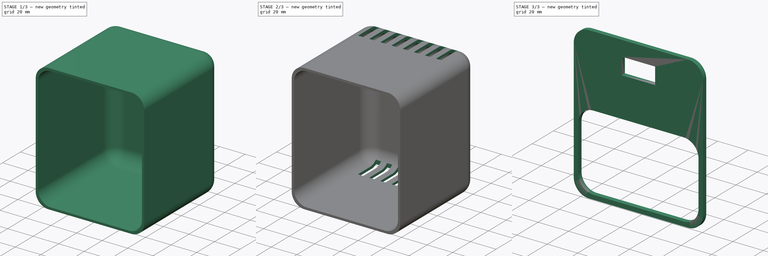
[diagram: build sequence overview — one tinted view per stage of 3, left to right]
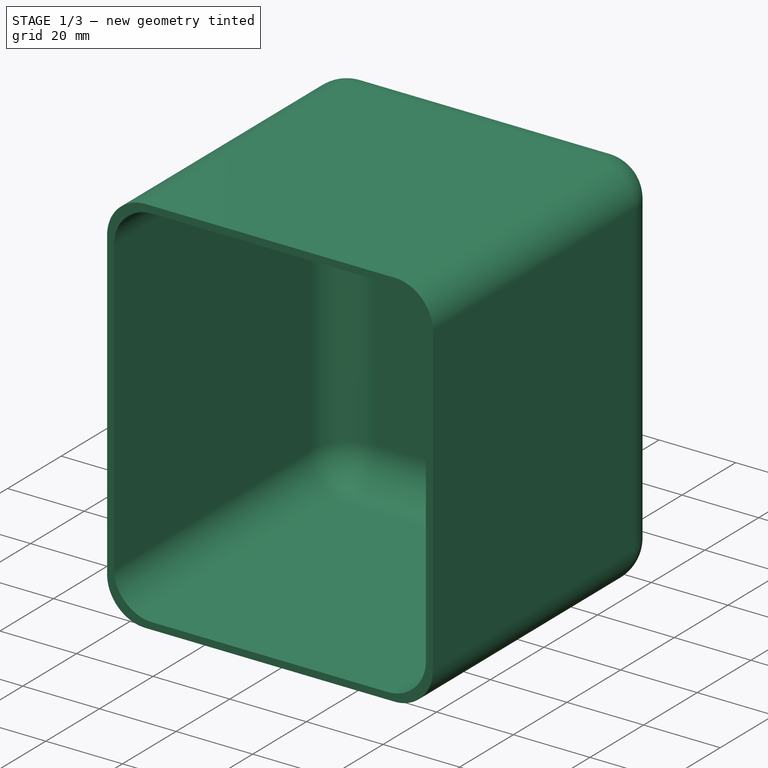
[diagram: stage 1 of 3 — iso view after this stage's code; geometry added in this stage tinted green]
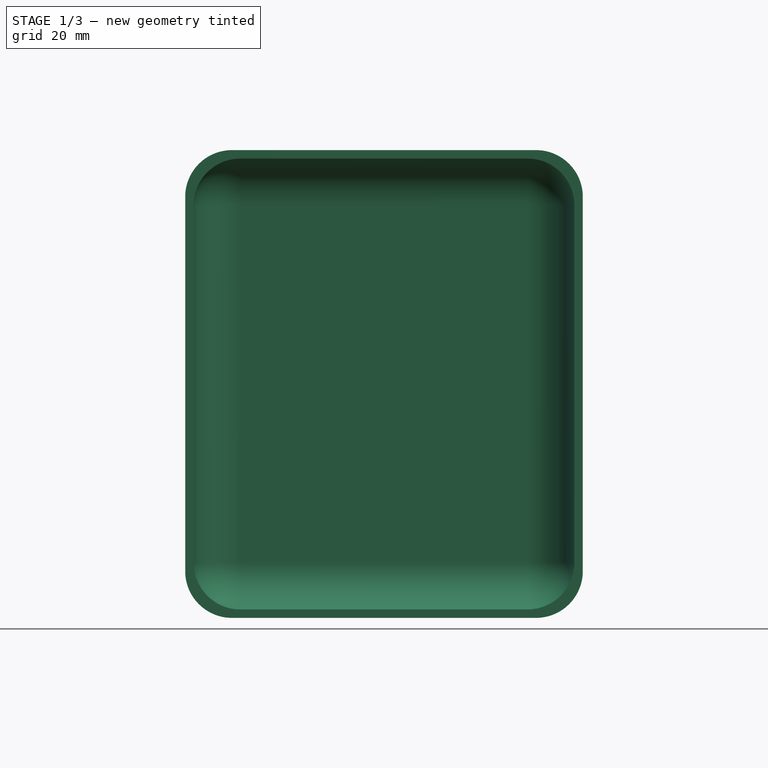
[diagram: stage 1 of 3 — front view after this stage's code; geometry added in this stage tinted green]
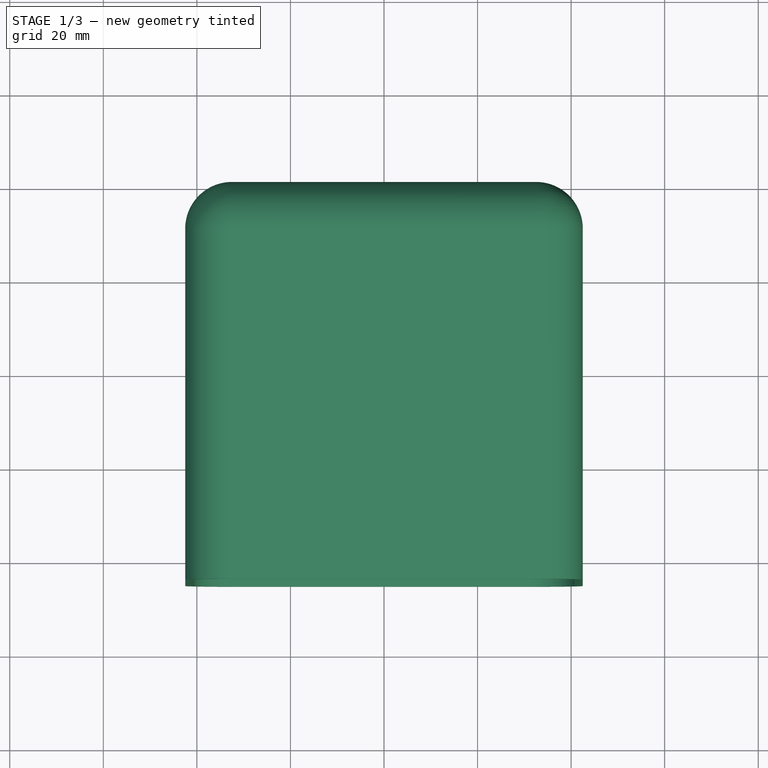
[diagram: stage 1 of 3 — top view after this stage's code; geometry added in this stage tinted green]
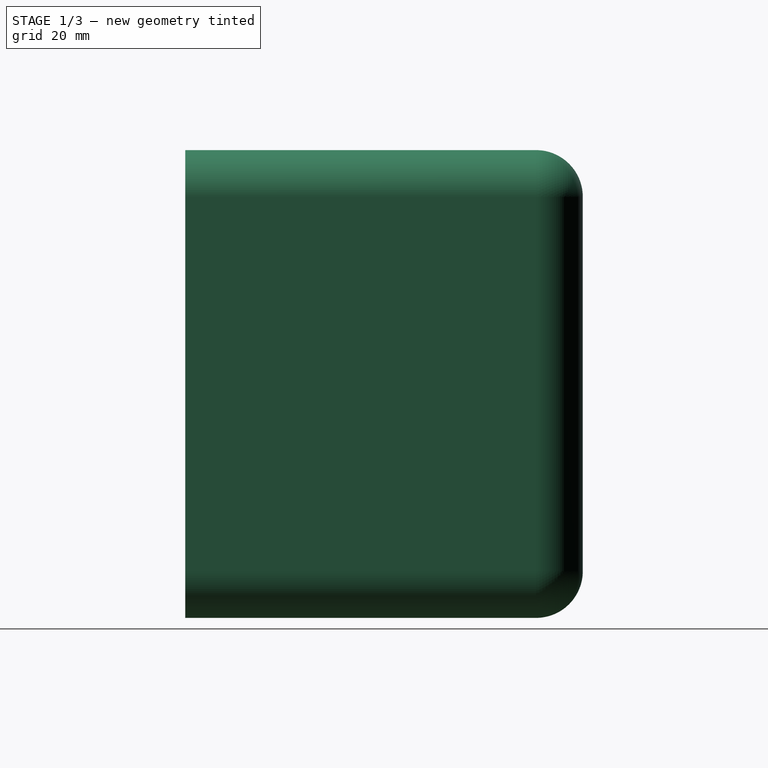
[diagram: stage 1 of 3 — right view after this stage's code; geometry added in this stage tinted green]
FCSTD DOCUMENT  (FreeCAD 0.21R33771 (Git))
Label: smart_speaker
License: All rights reserved
LicenseURL: http://en.wikipedia.org/wiki/All_rights_reserved
objects: Sketcher::SketchObject×7, PartDesign::Pocket×4, PartDesign::Body×3, PartDesign::Pad×2, PartDesign::ShapeBinder×2, PartDesign::Fillet×1, PartDesign::LinearPattern×1
note: 27 computed .brp shape members not serialized (recipe doc carries the construction recipe); baked Part::Feature solids carry a one-line shape summary decoded from their .brp

FEATURE [Sketcher::SketchObject] Sketch
  FullyConstrained = true
  MapMode = 5
  Placement = pos=(0,0,0) rot=(1,0,0;1.5708rad)
  Support = -> [XZ_Plane]
  sketch-geometry (5):
    g0: LineSegment StartX=-42.5 StartY=-50 StartZ=0 EndX=-42.5 EndY=50 EndZ=0
    g1: LineSegment StartX=-42.5 StartY=50 StartZ=0 EndX=42.5 EndY=50 EndZ=0
    g2: LineSegment StartX=42.5 StartY=50 StartZ=0 EndX=42.5 EndY=-50 EndZ=0
    g3: LineSegment StartX=42.5 StartY=-50 StartZ=0 EndX=-42.5 EndY=-50 EndZ=0
    g4: GeomPoint X=0 Y=0 Z=0
  constraints (12):
    c: Coincident(g0,g1)
    c: Coincident(g1,g2)
    c: Coincident(g2,g3)
    c: Coincident(g3,g0)
    c: Horizontal(g1)
    c: Horizontal(g3)
    c: Vertical(g0)
    c: Vertical(g2)
    c: Symmetric(g1,g0,g4)
    c: Coincident(g4,g-1)
    c: DistanceY(g0,g0) = 100
    c: DistanceX(g0,g1) = 85
FEATURE [PartDesign::Pad] Pad
  Direction = (0,-1,-2e-16)
  Length = 85
  Length2 = 10
  Placement = pos=(0,0,0) rot=(1,0,0;1.5708rad)
  Profile = -> Sketch
  ReferenceAxis = -> Sketch [N_Axis]
  Type = 0
FEATURE [Sketcher::SketchObject] Sketch001
  ExternalGeometry = -> [Pad]
  FullyConstrained = true
  MapMode = 5
  Placement = pos=(0,-85,-1.89e-14) rot=(1,0,0;1.5708rad)
  Support = -> [Pad]
  sketch-geometry (5):
    g0: LineSegment StartX=-40.7 StartY=48.2 StartZ=0 EndX=-40.7 EndY=-48.2 EndZ=0
    g1: LineSegment StartX=-40.7 StartY=-48.2 StartZ=0 EndX=40.7 EndY=-48.2 EndZ=0
    g2: LineSegment StartX=40.7 StartY=-48.2 StartZ=0 EndX=40.7 EndY=48.2 EndZ=0
    g3: LineSegment StartX=40.7 StartY=48.2 StartZ=0 EndX=-40.7 EndY=48.2 EndZ=0
    g4: GeomPoint X=0 Y=0 Z=0
  constraints (12):
    c: Coincident(g0,g1)
    c: Coincident(g1,g2)
    c: Coincident(g2,g3)
    c: Coincident(g3,g0)
    c: Horizontal(g1)
    c: Horizontal(g3)
    c: Vertical(g0)
    c: Vertical(g2)
    c: Symmetric(g1,g0,g4)
    c: Coincident(g4,g-1)
    c: DistanceY(g0,g-4) = 1.8
    c: DistanceX(g-4,g0) = 1.8
FEATURE [PartDesign::Pocket] Pocket
  BaseFeature = -> Pad
  Direction = (0,1,2e-16)
  Length = 83.2
  Length2 = 5
  Placement = pos=(0,0,0) rot=(1,0,0;1.5708rad)
  Profile = -> Sketch001
  ReferenceAxis = -> Sketch001 [N_Axis]
  Type = 0
FEATURE [PartDesign::Fillet] Fillet
  Base = -> Pocket [Edge5,Edge6,Edge8,Edge9,Edge2,Edge1,Edge18,Edge19,Edge23,Edge22,Edge20,Edge17,Edge11,Edge3,Edge21,Edge24]
  BaseFeature = -> Pocket
  Placement = pos=(0,0,0) rot=(1,0,0;1.5708rad)
  Radius = 10
  SupportTransform = false
  UseAllEdges = false
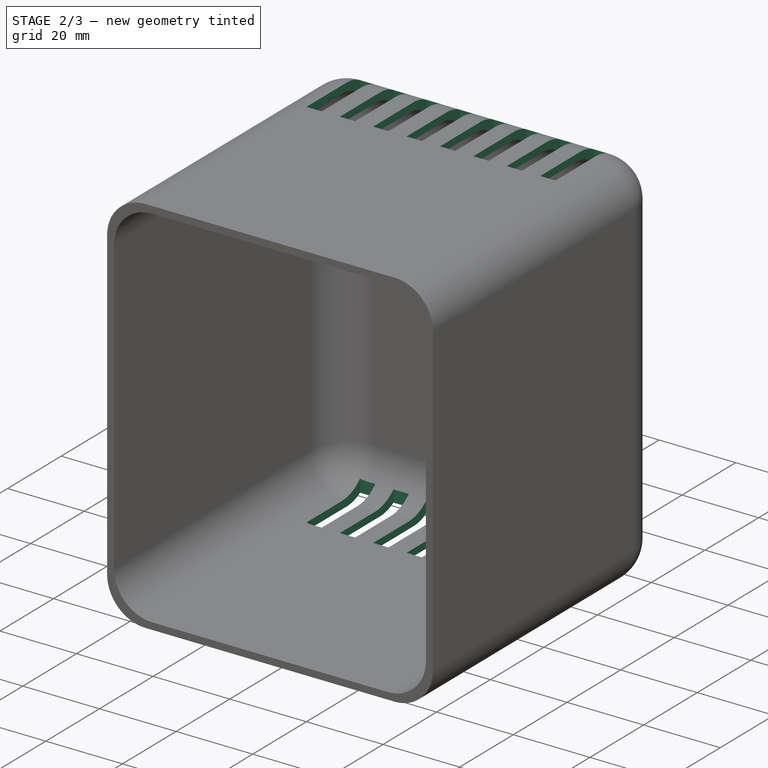
[diagram: stage 2 of 3 — iso view after this stage's code; geometry added in this stage tinted green]
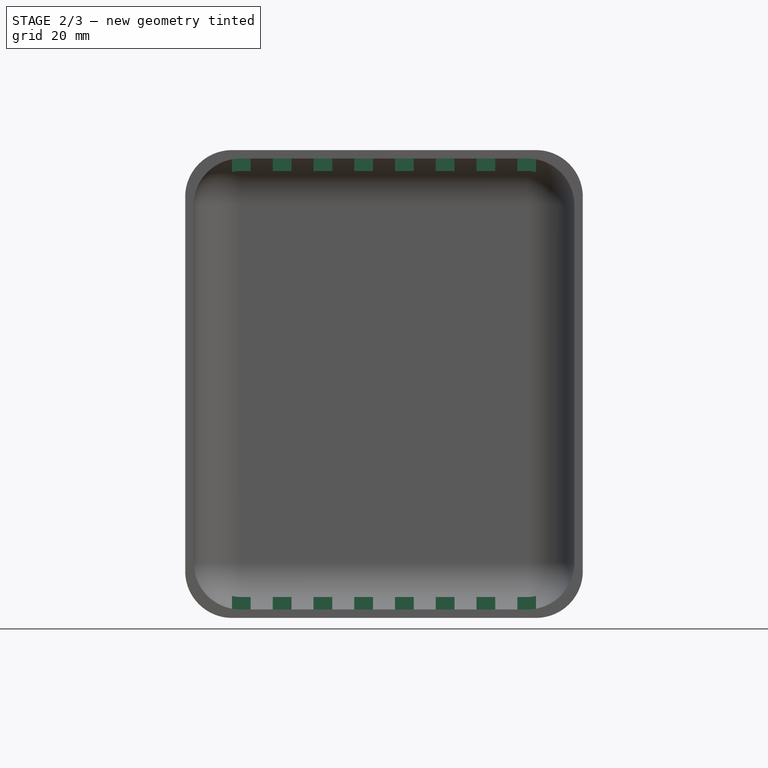
[diagram: stage 2 of 3 — front view after this stage's code; geometry added in this stage tinted green]
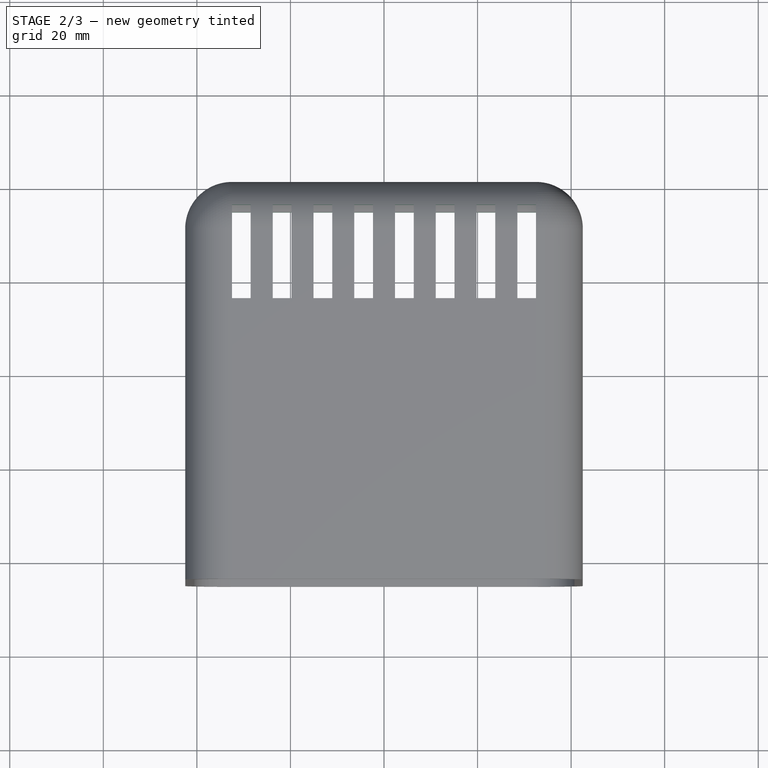
[diagram: stage 2 of 3 — top view after this stage's code; geometry added in this stage tinted green]
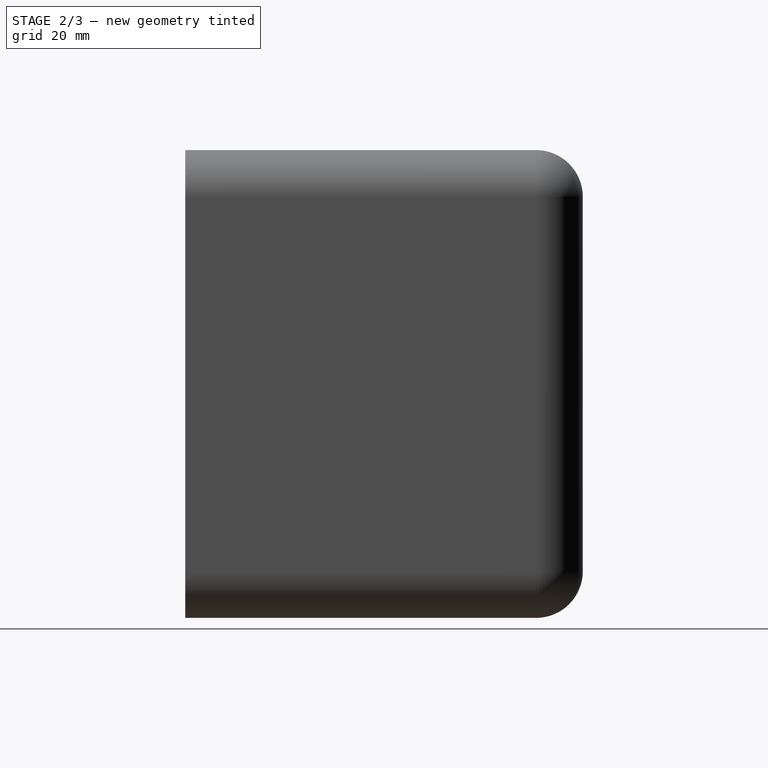
[diagram: stage 2 of 3 — right view after this stage's code; geometry added in this stage tinted green]
FEATURE [Sketcher::SketchObject] Sketch002
  ExternalGeometry = -> [Fillet]
  FullyConstrained = true
  MapMode = 5
  Placement = pos=(0,-1.11e-14,50) rot=(0,0,1;3.14159rad)
  Support = -> [Fillet]
  sketch-geometry (4):
    g0: LineSegment StartX=-32.5 StartY=25 StartZ=0 EndX=-28.5 EndY=25 EndZ=0
    g1: LineSegment StartX=-28.5 StartY=25 StartZ=0 EndX=-28.5 EndY=5 EndZ=0
    g2: LineSegment StartX=-28.5 StartY=5 StartZ=0 EndX=-32.5 EndY=5 EndZ=0
    g3: LineSegment StartX=-32.5 StartY=5 StartZ=0 EndX=-32.5 EndY=25 EndZ=0
  constraints (12):
    c: Coincident(g0,g1)
    c: Coincident(g1,g2)
    c: Coincident(g2,g3)
    c: Coincident(g3,g0)
    c: Horizontal(g0)
    c: Horizontal(g2)
    c: Vertical(g1)
    c: Vertical(g3)
    c: DistanceY(g-3,g2) = -5
    c: DistanceX(g-3,g2) = 0
    c: DistanceX(g0,g0) = 4
    c: DistanceY(g1,g0) = 20
FEATURE [PartDesign::Pocket] Pocket001  label="Vent Hole"
  BaseFeature = -> Fillet
  Direction = (0,2e-16,-1)
  Length = 500
  Length2 = 5
  Placement = pos=(0,0,0) rot=(1,0,0;1.5708rad)
  Profile = -> Sketch002
  ReferenceAxis = -> Sketch002 [N_Axis]
  Type = 0
FEATURE [PartDesign::LinearPattern] LinearPattern  label="Vent Hole Array"
  BaseFeature = -> Pocket001
  Direction = -> Sketch002 [H_Axis]
  Length = 61
  Occurrences = 8
  Originals = -> [Pocket001]
  Placement = pos=(0,0,0) rot=(1,0,0;1.5708rad)
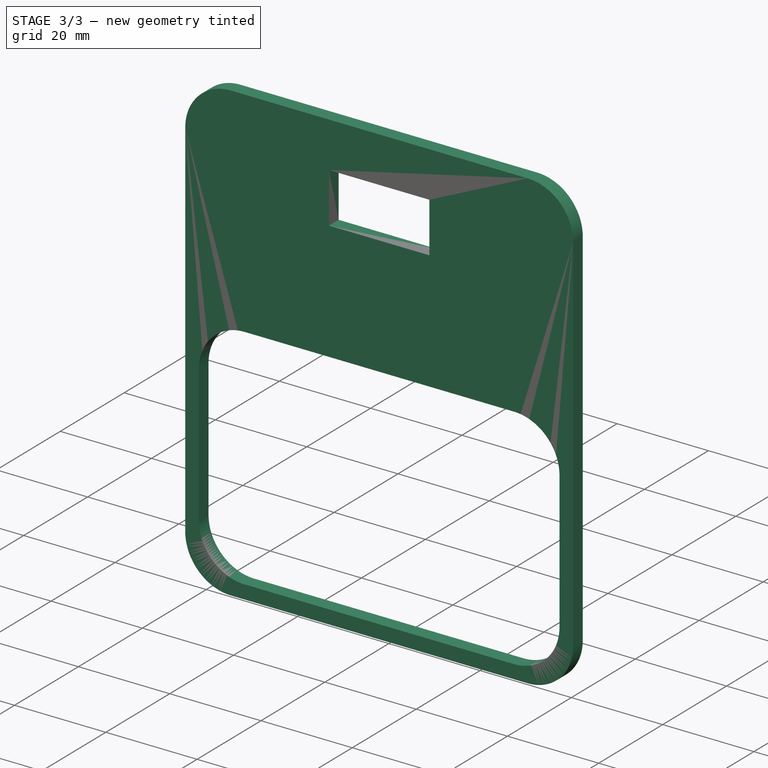
[diagram: stage 3 of 3 — iso view after this stage's code; geometry added in this stage tinted green]
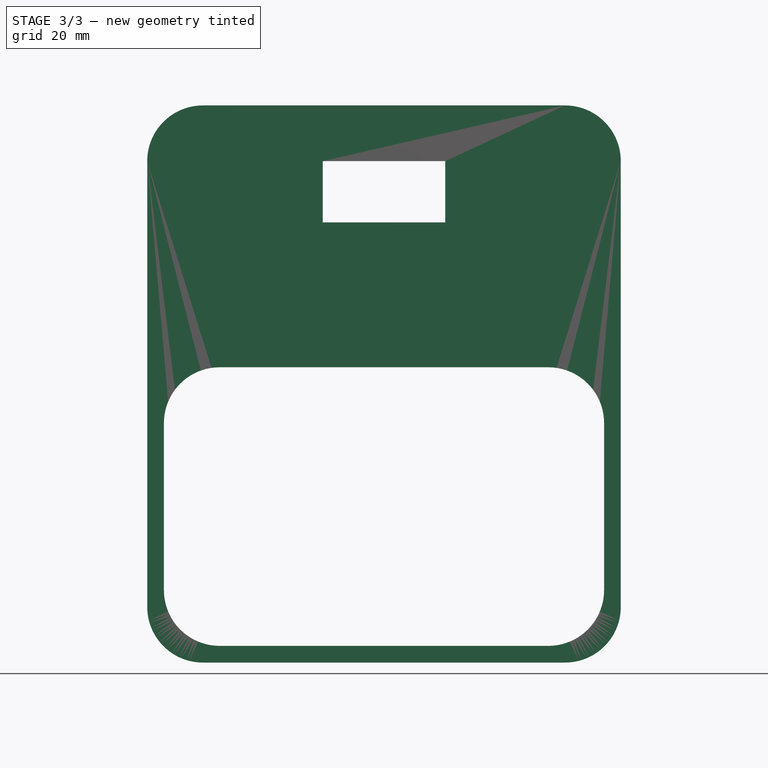
[diagram: stage 3 of 3 — front view after this stage's code; geometry added in this stage tinted green]
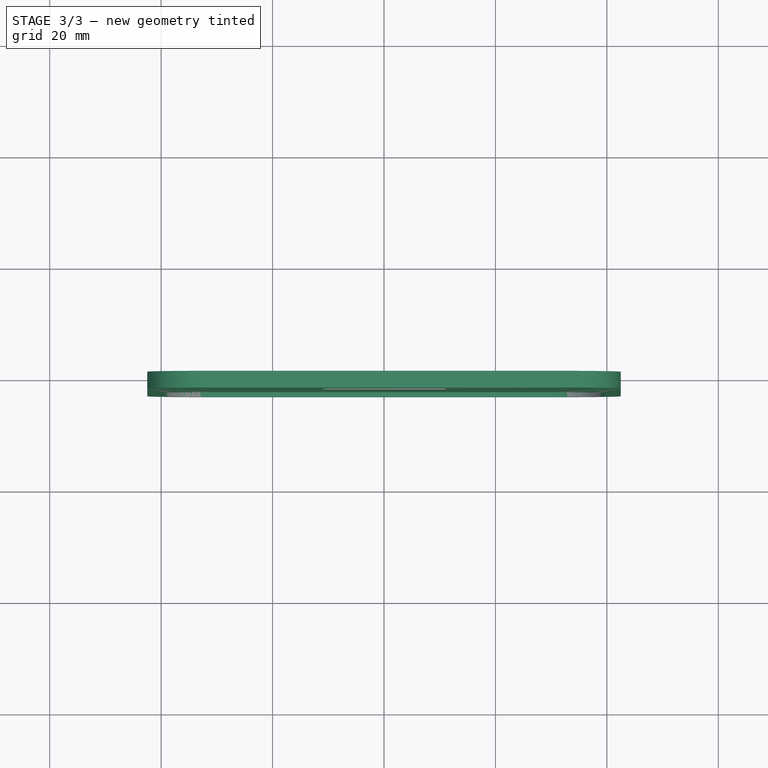
[diagram: stage 3 of 3 — top view after this stage's code; geometry added in this stage tinted green]
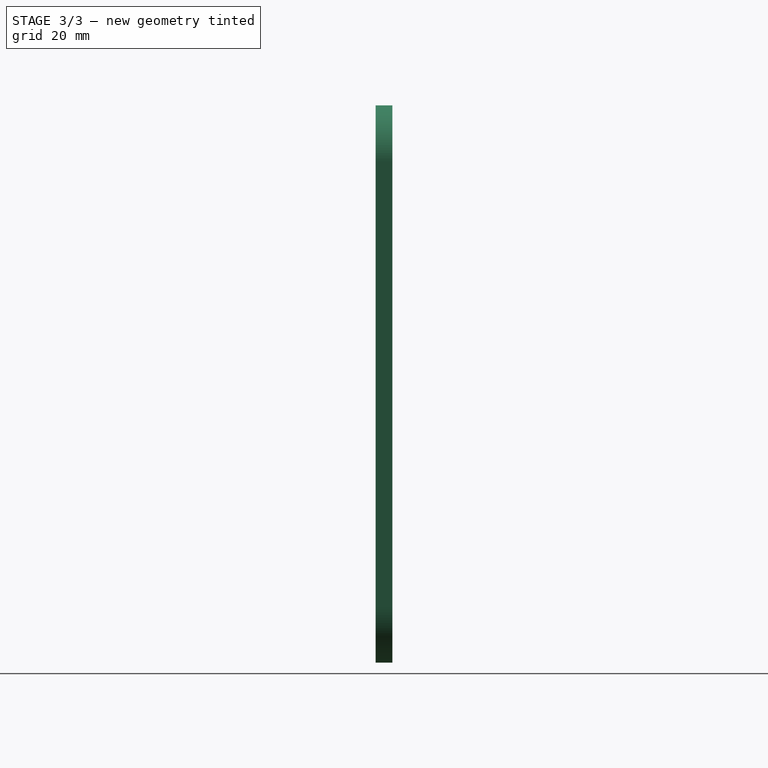
[diagram: stage 3 of 3 — right view after this stage's code; geometry added in this stage tinted green]
FEATURE [PartDesign::Body] Body  label="Main Case"
  Group = -> [Pad,Sketch,Sketch001,Pocket,Fillet,Sketch002,Pocket001,LinearPattern]
  Origin = -> Origin
  Tip = -> LinearPattern
FEATURE [PartDesign::ShapeBinder] ShapeBinder
  Placement = pos=(0,0,0) rot=(1,0,0;1.5708rad)
  Support = -> [LinearPattern]
  TraceSupport = false
FEATURE [Sketcher::SketchObject] Sketch003
  ExternalGeometry = -> [ShapeBinder]
  FullyConstrained = true
  MapMode = 5
  Placement = pos=(0,0,0) rot=(1,0,0;1.5708rad)
  Support = -> [XZ_Plane001]
  sketch-geometry (10):
    g0: ArcOfCircle CenterX=-32.5 CenterY=40 CenterZ=0 NormalX=0 NormalY=0 NormalZ=1 AngleXU=0 Radius=10 StartAngle=1.5708 EndAngle=3.14159
    g1: LineSegment StartX=-32.5 StartY=50 StartZ=0 EndX=32.5 EndY=50 EndZ=0
    g2: ArcOfCircle CenterX=32.5 CenterY=40 CenterZ=0 NormalX=0 NormalY=0 NormalZ=1 AngleXU=0 Radius=10 StartAngle=0 EndAngle=1.5708
    g3: LineSegment StartX=42.5 StartY=40 StartZ=0 EndX=42.5 EndY=-40 EndZ=0
    g4: ArcOfCircle CenterX=32.5 CenterY=-40 CenterZ=0 NormalX=0 NormalY=0 NormalZ=1 AngleXU=0 Radius=10 StartAngle=4.71239 EndAngle=6.28319
    g5: LineSegment StartX=32.5 StartY=-50 StartZ=0 EndX=-32.5 EndY=-50 EndZ=0
    g6: ArcOfCircle CenterX=-32.5 CenterY=-40 CenterZ=0 NormalX=0 NormalY=0 NormalZ=1 AngleXU=0 Radius=10 StartAngle=3.14159 EndAngle=4.71239
    g7: LineSegment StartX=-42.5 StartY=-40 StartZ=0 EndX=-42.5 EndY=40 EndZ=0
    g8: GeomPoint X=-42.5 Y=50 Z=0
    g9: GeomPoint X=42.5 Y=-50 Z=0
  constraints (24):
    c: Tangent(g0,g1) = 1.5708
    c: Tangent(g1,g2) = 1.5708
    c: Tangent(g2,g3) = 1.5708
    c: Tangent(g3,g4) = 1.5708
    c: Tangent(g4,g5) = 1.5708
    c: Tangent(g5,g6) = 1.5708
    c: Tangent(g6,g7) = 1.5708
    c: Tangent(g7,g0) = 1.5708
    c: Horizontal(g1)
    c: Horizontal(g5)
    c: Vertical(g3)
    c: Vertical(g7)
    c: Equal(g0,g2)
    c: Equal(g2,g4)
    c: Equal(g4,g6)
    c: PointOnObject(g8,g1)
    c: PointOnObject(g8,g7)
    c: PointOnObject(g9,g3)
    c: PointOnObject(g9,g5)
    c: Equal(g1,g-4)
    c: Equal(g7,g-10)
    c: Equal(g0,g-3)
    c: DistanceX(g0,g-3) = 0
    c: DistanceY(g-3,g0) = 0
FEATURE [PartDesign::Pad] Pad001
  Direction = (0,-1,-2e-16)
  Length = 3
  Length2 = 10
  Placement = pos=(0,0,0) rot=(1,0,0;1.5708rad)
  Profile = -> Sketch003
  ReferenceAxis = -> Sketch003 [N_Axis]
  Type = 0
FEATURE [Sketcher::SketchObject] Sketch004
  ExternalGeometry = -> [Pad001]
  FullyConstrained = true
  MapMode = 5
  Placement = pos=(0,-3,-7e-16) rot=(1,0,0;1.5708rad)
  Support = -> [Pad001]
  sketch-geometry (10):
    g0: ArcOfCircle CenterX=-29.5 CenterY=-7 CenterZ=0 NormalX=0 NormalY=0 NormalZ=1 AngleXU=0 Radius=10 StartAngle=1.5708 EndAngle=3.14159
    g1: LineSegment StartX=-29.5 StartY=3 StartZ=0 EndX=29.5 EndY=3 EndZ=0
    g2: ArcOfCircle CenterX=29.5 CenterY=-7 CenterZ=0 NormalX=0 NormalY=0 NormalZ=1 AngleXU=0 Radius=10 StartAngle=1e-16 EndAngle=1.5708
    g3: LineSegment StartX=39.5 StartY=-7 StartZ=0 EndX=39.5 EndY=-37 EndZ=0
    g4: ArcOfCircle CenterX=29.5 CenterY=-37 CenterZ=0 NormalX=0 NormalY=0 NormalZ=1 AngleXU=0 Radius=10 StartAngle=4.71239 EndAngle=6.28319
    g5: LineSegment StartX=29.5 StartY=-47 StartZ=0 EndX=-29.5 EndY=-47 EndZ=0
    g6: ArcOfCircle CenterX=-29.5 CenterY=-37 CenterZ=0 NormalX=0 NormalY=0 NormalZ=1 AngleXU=0 Radius=10 StartAngle=3.14159 EndAngle=4.71239
    g7: LineSegment StartX=-39.5 StartY=-37 StartZ=0 EndX=-39.5 EndY=-7 EndZ=0
    g8: GeomPoint X=-39.5 Y=3 Z=0
    g9: GeomPoint X=39.5 Y=-47 Z=0
  constraints (24):
    c: Tangent(g0,g1) = 1.5708
    c: Tangent(g1,g2) = 1.5708
    c: Tangent(g2,g3) = 1.5708
    c: Tangent(g3,g4) = 1.5708
    c: Tangent(g4,g5) = 1.5708
    c: Tangent(g5,g6) = 1.5708
    c: Tangent(g6,g7) = 1.5708
    c: Tangent(g7,g0) = 1.5708
    c: Horizontal(g1)
    c: Horizontal(g5)
    c: Vertical(g3)
    c: Vertical(g7)
    c: Equal(g0,g2)
    c: Equal(g2,g4)
    c: Equal(g4,g6)
    c: PointOnObject(g8,g1)
    c: PointOnObject(g8,g7)
    c: PointOnObject(g9,g3)
    c: PointOnObject(g9,g5)
    c: Equal(g6,g-4)
    c: DistanceX(g-4,g6) = 3
    c: DistanceY(g-4,g5) = 3
    c: DistanceX(g3,g-3) = 3
    c: DistanceY(g5,g0) = 50
FEATURE [PartDesign::Pocket] Pocket002
  BaseFeature = -> Pad001
  Direction = (0,1,2e-16)
  Length = 5
  Length2 = 5
  Placement = pos=(0,0,0) rot=(1,0,0;1.5708rad)
  Profile = -> Sketch004
  ReferenceAxis = -> Sketch004 [N_Axis]
  Type = 0
FEATURE [Sketcher::SketchObject] Sketch005
  ExternalGeometry = -> [Pocket002]
  FullyConstrained = true
  MapMode = 5
  Placement = pos=(0,-3,-7e-16) rot=(1,0,0;1.5708rad)
  Support = -> [Pocket002]
  sketch-geometry (4):
    g0: LineSegment StartX=-11 StartY=40 StartZ=0 EndX=11 EndY=40 EndZ=0
    g1: LineSegment StartX=11 StartY=40 StartZ=0 EndX=11 EndY=29 EndZ=0
    g2: LineSegment StartX=11 StartY=29 StartZ=0 EndX=-11 EndY=29 EndZ=0
    g3: LineSegment StartX=-11 StartY=29 StartZ=0 EndX=-11 EndY=40 EndZ=0
  constraints (12):
    c: Coincident(g0,g1)
    c: Coincident(g1,g2)
    c: Coincident(g2,g3)
    c: Coincident(g3,g0)
    c: Horizontal(g0)
    c: Horizontal(g2)
    c: Vertical(g1)
    c: Vertical(g3)
    c: DistanceX(g0,g0) = 22
    c: DistanceY(g1,g1) = 11
    c: DistanceY(g0,g-3) = 10
    c: DistanceX(g2,g-1) = 11
FEATURE [PartDesign::Pocket] Pocket003
  BaseFeature = -> Pocket002
  Direction = (0,1,2e-16)
  Length = 5
  Length2 = 5
  Placement = pos=(0,0,0) rot=(1,0,0;1.5708rad)
  Profile = -> Sketch005
  ReferenceAxis = -> Sketch005 [N_Axis]
  Type = 0
FEATURE [PartDesign::Body] Body001  label="Front Panel"
  Group = -> [ShapeBinder,Sketch003,Pad001,Sketch004,Pocket002,Sketch005,Pocket003]
  Origin = -> Origin001
  Placement = pos=(0,-85,0) rot=(0,0,1;0rad)
  Tip = -> Pocket003
FEATURE [PartDesign::ShapeBinder] ShapeBinder001
  Placement = pos=(0,0,0) rot=(1,0,0;1.5708rad)
  Support = -> [Fillet]
  TraceSupport = false
FEATURE [Sketcher::SketchObject] Sketch006
  FullyConstrained = true
  MapMode = 5
  Placement = pos=(40.7,0,0) rot=(0.707107,0,-0.707107;3.14159rad)
  Support = -> [ShapeBinder001]
FEATURE [PartDesign::Body] Body002  label="Interior V1"
  Group = -> [ShapeBinder001,Sketch006]
  Origin = -> Origin002
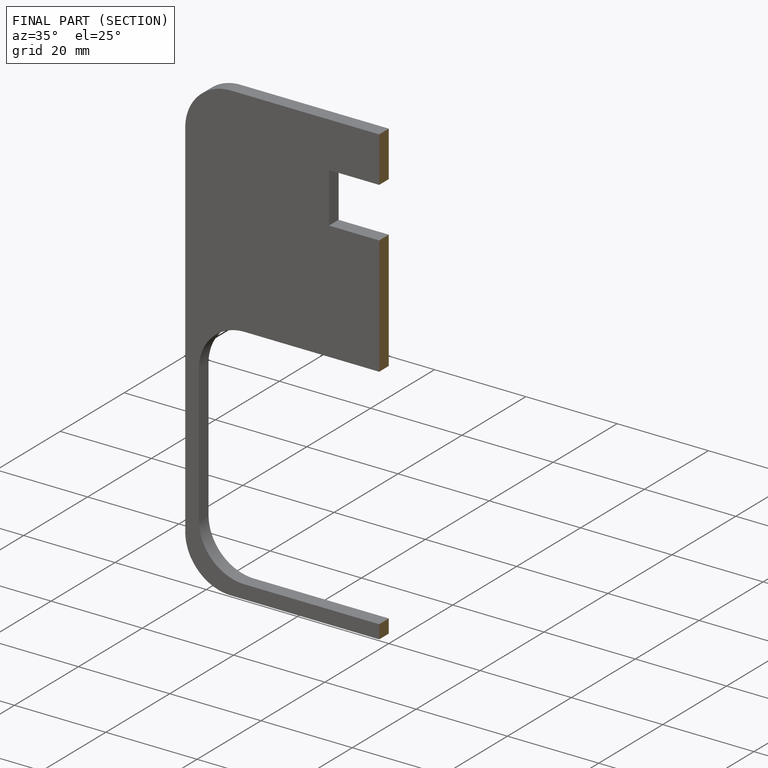
[diagram: finished part — half-section view (interior)]
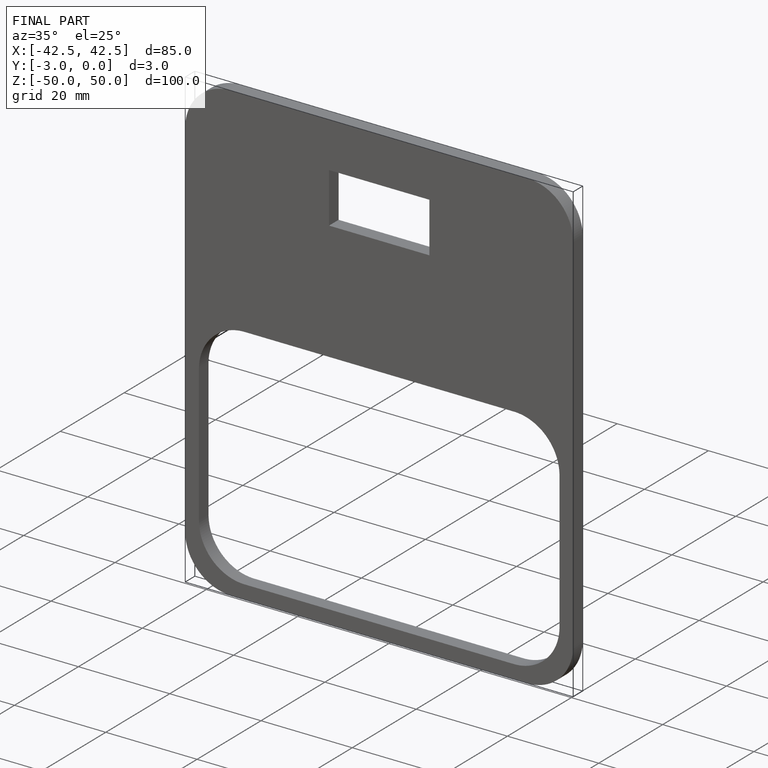
[diagram: finished part — iso view with bounding-box wireframe]
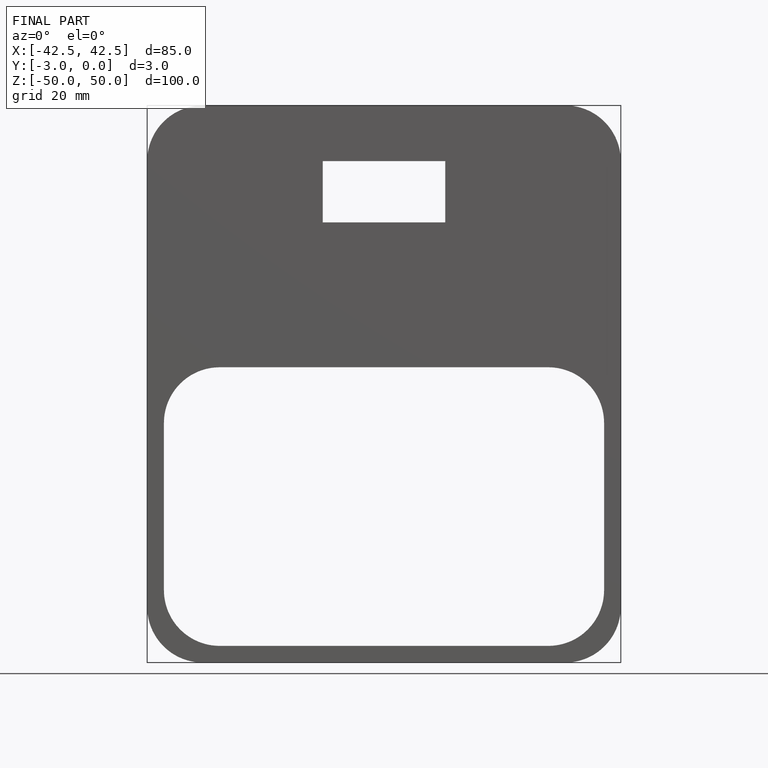
[diagram: finished part — front view with bounding-box wireframe]
